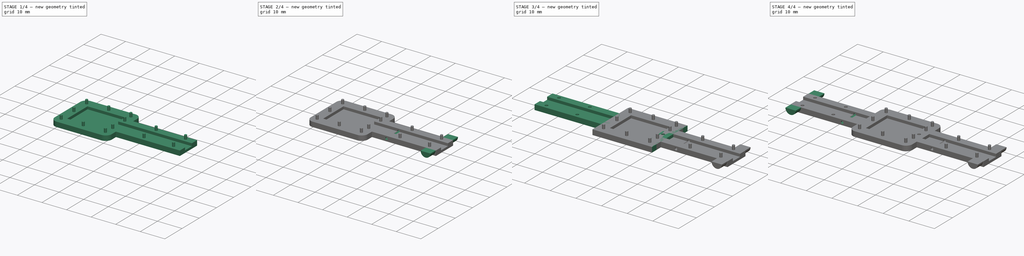
[diagram: build sequence overview — one tinted view per stage of 4, left to right]
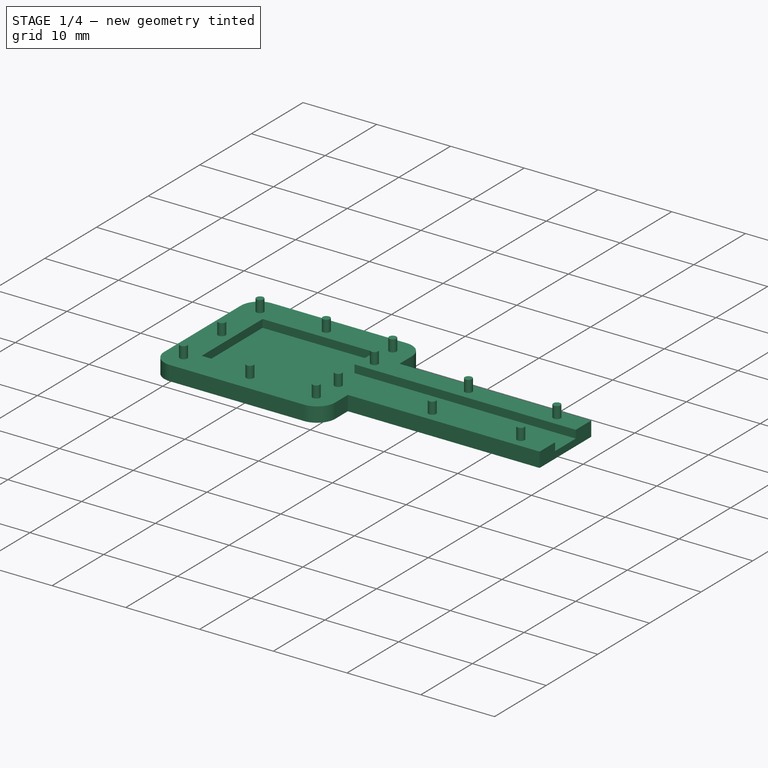
[diagram: stage 1 of 4 — iso view after this stage's code; geometry added in this stage tinted green]
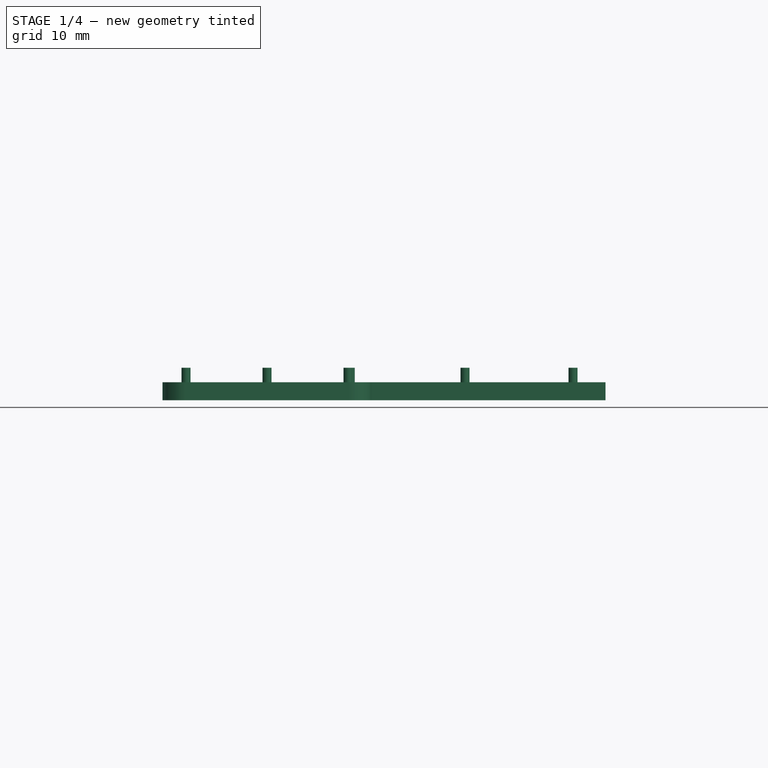
[diagram: stage 1 of 4 — front view after this stage's code; geometry added in this stage tinted green]
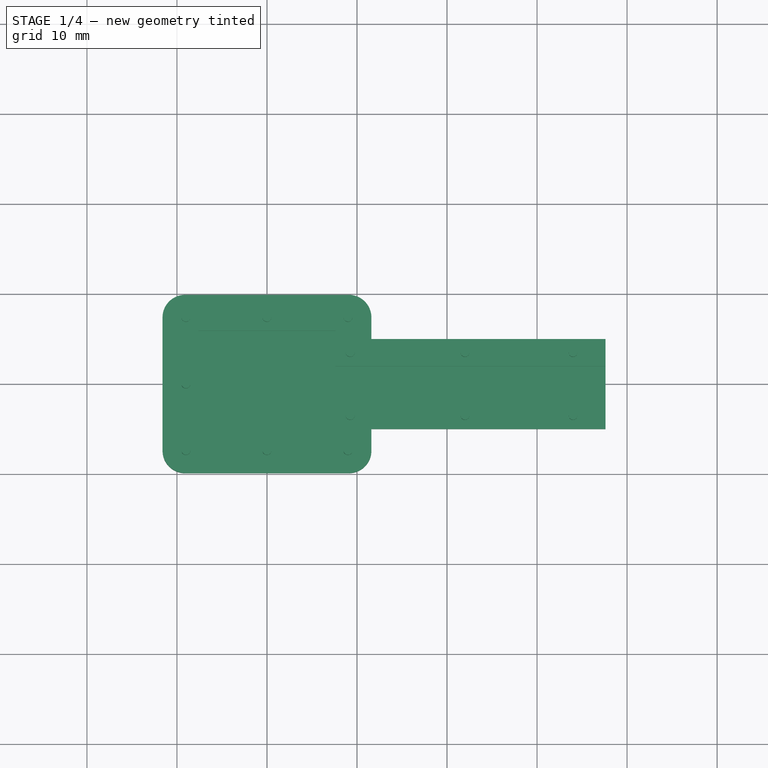
[diagram: stage 1 of 4 — top view after this stage's code; geometry added in this stage tinted green]
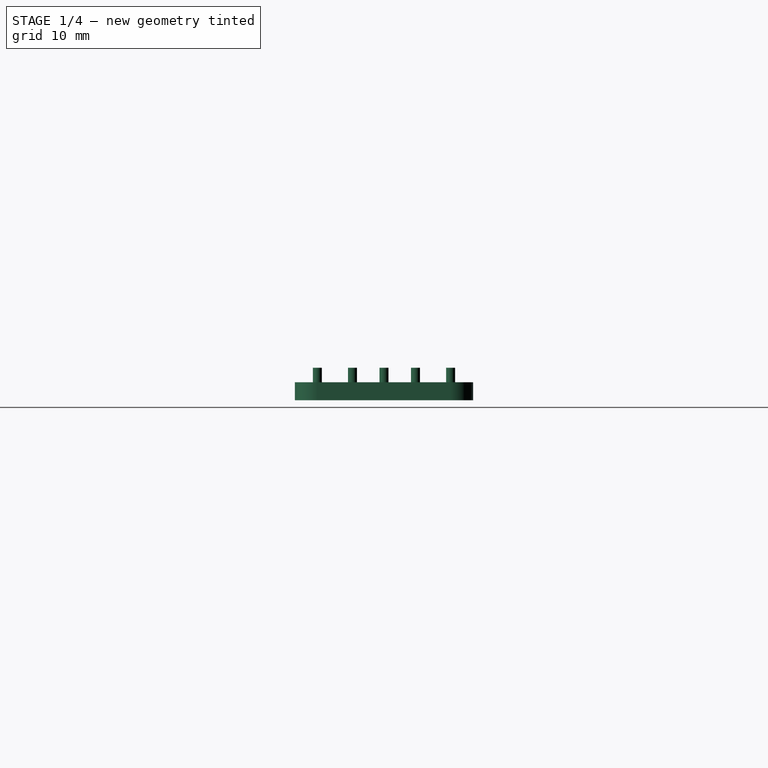
[diagram: stage 1 of 4 — right view after this stage's code; geometry added in this stage tinted green]
FCSTD DOCUMENT  (FreeCAD 0.21R33771 (Git))
Label: Key2
License: All rights reserved
LicenseURL: http://en.wikipedia.org/wiki/All_rights_reserved
objects: Sketcher::SketchObject×12, PartDesign::Pad×7, PartDesign::Pocket×5, PartDesign::Fillet×2, PartDesign::Body×2, App::Part×2, Spreadsheet::Sheet×1
note: 42 computed .brp shape members not serialized (recipe doc carries the construction recipe); baked Part::Feature solids carry a one-line shape summary decoded from their .brp

FEATURE [Sketcher::SketchObject] MirroredSketch
  FullyConstrained = true
  expr: Constraints[19] = <<p>>.touch_width + <<p>>.touch_thickness * 2
  expr: Constraints[20] = (<<p>>.touch_width + <<p>>.touch_thickness * 2) / 2
  expr: Constraints[22] = <<p>>.touch_length + <<p>>.touch_thickness * 2
  expr: Constraints[23] = (<<p>>.touch_length + <<p>>.touch_thickness * 2) / 2
  sketch-geometry (8):
    g0: LineSegment StartX=11.6 StartY=-5 StartZ=0 EndX=11.6 EndY=-9.9 EndZ=0
    g1: LineSegment StartX=11.6 StartY=-9.9 StartZ=0 EndX=-11.6 EndY=-9.9 EndZ=0
    g2: LineSegment StartX=-11.6 StartY=-9.9 StartZ=0 EndX=-11.6 EndY=9.9 EndZ=0
    g3: LineSegment StartX=-11.6 StartY=9.9 StartZ=0 EndX=11.6 EndY=9.9 EndZ=0
    g4: LineSegment StartX=11.6 StartY=9.9 StartZ=0 EndX=11.6 EndY=5 EndZ=0
    g5: LineSegment StartX=11.6 StartY=5 StartZ=0 EndX=37.6 EndY=5 EndZ=0
    g6: LineSegment StartX=37.6 StartY=5 StartZ=0 EndX=37.6 EndY=-5 EndZ=0
    g7: LineSegment StartX=37.6 StartY=-5 StartZ=0 EndX=11.6 EndY=-5 EndZ=0
  constraints (24):
    c: Vertical(g0)
    c: Coincident(g0,g1)
    c: Horizontal(g1)
    c: Coincident(g1,g2)
    c: Vertical(g2)
    c: Coincident(g2,g3)
    c: Horizontal(g3)
    c: Coincident(g3,g4)
    c: Vertical(g4)
    c: Coincident(g4,g5)
    c: Horizontal(g5)
    c: Coincident(g5,g6)
    c: Vertical(g6)
    c: Coincident(g6,g7)
    c: Coincident(g7,g0)
    c: Horizontal(g7)
    c: DistanceX(g5,g5) = 26
    c: DistanceX(g7,g7) = 26
    c: DistanceY(g6,g6) = 10
    c: DistanceX(g3,g3) = 23.2
    c: DistanceX(g-1,g4) = 11.6
    c: DistanceY(g-1,g4) = 5
    c: DistanceY(g2,g2) = 19.8
    c: DistanceY(g0,g-1) = 9.9
FEATURE [PartDesign::Pad] Pad001  label="KeyPad2"
  Direction = (0,0,1)
  Length = 2
  Length2 = 10
  Profile = -> MirroredSketch
  ReferenceAxis = -> MirroredSketch [N_Axis]
  Type = 0
  expr: Length = <<p>>.key_thickness / 2
FEATURE [Sketcher::SketchObject] MirroredSketch001
  FullyConstrained = true
  MapMode = 5
  Placement = pos=(0,0,2) rot=(0,0,1;0rad)
  Support = -> [Pad001]
  sketch-geometry (8):
    g0: LineSegment StartX=7.6 StartY=2 StartZ=0 EndX=7.6 EndY=5.9 EndZ=0
    g1: LineSegment StartX=7.6 StartY=5.9 StartZ=0 EndX=-7.6 EndY=5.9 EndZ=0
    g2: LineSegment StartX=-7.6 StartY=5.9 StartZ=0 EndX=-7.6 EndY=-5.9 EndZ=0
    g3: LineSegment StartX=-7.6 StartY=-5.9 StartZ=0 EndX=7.6 EndY=-5.9 EndZ=0
    g4: LineSegment StartX=7.6 StartY=-5.9 StartZ=0 EndX=7.6 EndY=-2 EndZ=0
    g5: LineSegment StartX=7.6 StartY=-2 StartZ=0 EndX=37.6 EndY=-2 EndZ=0
    g6: LineSegment StartX=37.6 StartY=-2 StartZ=0 EndX=37.6 EndY=2 EndZ=0
    g7: LineSegment StartX=37.6 StartY=2 StartZ=0 EndX=7.6 EndY=2 EndZ=0
  constraints (24):
    c: Vertical(g0)
    c: Coincident(g0,g1)
    c: Horizontal(g1)
    c: Coincident(g1,g2)
    c: Vertical(g2)
    c: Coincident(g2,g3)
    c: Horizontal(g3)
    c: Coincident(g3,g4)
    c: Vertical(g4)
    c: Coincident(g4,g5)
    c: Horizontal(g5)
    c: Coincident(g5,g6)
    c: Vertical(g6)
    c: Coincident(g6,g7)
    c: Coincident(g7,g0)
    c: Horizontal(g7)
    c: DistanceY(g2,g2) = 11.8
    c: DistanceY(g0,g0) = 3.9
    c: DistanceY(g4,g4) = 3.9
    c: DistanceY(g-1,g0) = 2
    c: DistanceX(g1,g1) = 15.2
    c: DistanceX(g7,g7) = 30
    c: DistanceX(g-1,g4) = 7.6
    c: DistanceX(g3,g3) = 15.2
FEATURE [PartDesign::Pocket] Pocket002  label="TochPocket2"
  BaseFeature = -> Pad001
  Direction = (0,0,-1)
  Length = 1.075
  Length2 = 5
  Profile = -> MirroredSketch001
  ReferenceAxis = -> MirroredSketch001 [N_Axis]
  Type = 0
  expr: Length = <<p>>.touch_depth / 2
FEATURE [Sketcher::SketchObject] MirroredSketch002
  FullyConstrained = true
  MapMode = 5
  Placement = pos=(0,0,2) rot=(0,0,1;0rad)
  Support = -> [Pocket002]
  expr: Constraints[12] = <<p>>.pin_diameter
  sketch-geometry (13):
    g0: Circle CenterX=34 CenterY=3.5 CenterZ=0 NormalX=0 NormalY=0 NormalZ=1 AngleXU=0 Radius=0.5
    g1: Circle CenterX=34 CenterY=-3.5 CenterZ=0 NormalX=0 NormalY=0 NormalZ=1 AngleXU=0 Radius=0.5
    g2: Circle CenterX=22 CenterY=3.5 CenterZ=0 NormalX=0 NormalY=0 NormalZ=1 AngleXU=0 Radius=0.5
    g3: Circle CenterX=22 CenterY=-3.5 CenterZ=0 NormalX=0 NormalY=0 NormalZ=1 AngleXU=0 Radius=0.5
    g4: Circle CenterX=9.25 CenterY=-3.5 CenterZ=0 NormalX=0 NormalY=0 NormalZ=1 AngleXU=0 Radius=0.5
    g5: Circle CenterX=9.25 CenterY=3.5 CenterZ=0 NormalX=0 NormalY=0 NormalZ=1 AngleXU=0 Radius=0.5
    g6: Circle CenterX=9 CenterY=7.4 CenterZ=0 NormalX=0 NormalY=0 NormalZ=1 AngleXU=0 Radius=0.5
    g7: Circle CenterX=0 CenterY=7.4 CenterZ=0 NormalX=0 NormalY=0 NormalZ=1 AngleXU=0 Radius=0.5
    g8: Circle CenterX=-9 CenterY=7.4 CenterZ=0 NormalX=0 NormalY=0 NormalZ=1 AngleXU=0 Radius=0.5
    g9: Circle CenterX=-9 CenterY=0 CenterZ=0 NormalX=0 NormalY=0 NormalZ=1 AngleXU=0 Radius=0.5
    g10: Circle CenterX=-9 CenterY=-7.4 CenterZ=0 NormalX=0 NormalY=0 NormalZ=1 AngleXU=0 Radius=0.5
    g11: Circle CenterX=0 CenterY=-7.4 CenterZ=0 NormalX=0 NormalY=0 NormalZ=1 AngleXU=0 Radius=0.5
    g12: Circle CenterX=9 CenterY=-7.4 CenterZ=0 NormalX=0 NormalY=0 NormalZ=1 AngleXU=0 Radius=0.5
  constraints (28):
    c: Equal(g0, g1-g12) x12
    c: Diameter(g0) = 1
    c: DistanceX(g7,g-1) = 0
    c: DistanceX(g11,g-1) = 0
    c: DistanceY(g-1,g8) = 7.4
    c: DistanceY(g-1,g7) = 7.4
    c: DistanceY(g-1,g6) = 7.4
    c: DistanceY(g9,g-1) = 0
    c: DistanceY(g10,g-1) = 7.4
    c: DistanceY(g11,g-1) = 7.4
    c: DistanceY(g12,g-1) = 7.4
    c: DistanceY(g4,g-1) = 3.5
    c: DistanceY(g-1,g5) = 3.5
    c: DistanceY(g-1,g2) = 3.5
    c: DistanceY(g3,g-1) = 3.5
    c: DistanceY(g1,g-1) = 3.5
    c: DistanceY(g-1,g0) = 3.5
    c: DistanceX(g8,g-1) = 9
    c: DistanceX(g9,g-1) = 9
    c: DistanceX(g10,g-1) = 9
    c: DistanceX(g-1,g12) = 9
    c: DistanceX(g-1,g4) = 9.25
    c: DistanceX(g-1,g5) = 9.25
    c: DistanceX(g-1,g6) = 9
    c: DistanceX(g-1,g2) = 22
    c: DistanceX(g-1,g3) = 22
    c: DistanceX(g-1,g0) = 34
    c: DistanceX(g-1,g1) = 34
FEATURE [PartDesign::Pad] Pad002  label="PinPads2"
  BaseFeature = -> Pocket002
  Direction = (0,0,1)
  Length = 1.6
  Length2 = 10
  Profile = -> MirroredSketch002
  ReferenceAxis = -> MirroredSketch002 [N_Axis]
  Type = 0
  expr: Length = <<p>>.pin_depth - 0.2
FEATURE [PartDesign::Fillet] Fillet001
  Base = -> Pad002 [Edge47,Edge46,Edge2,Edge8]
  BaseFeature = -> Pad002
  Radius = 2.5
  SupportTransform = false
  UseAllEdges = false
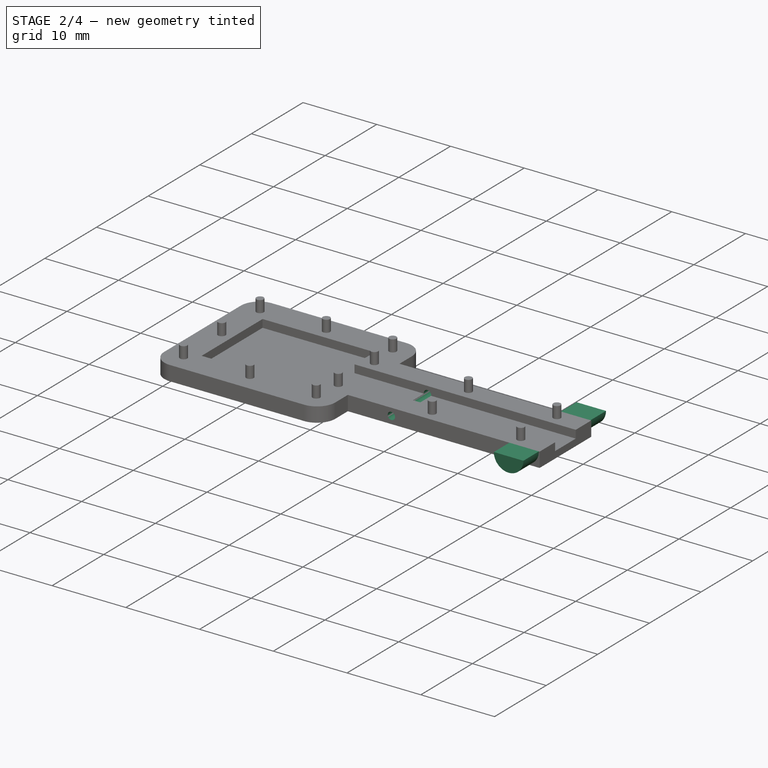
[diagram: stage 2 of 4 — iso view after this stage's code; geometry added in this stage tinted green]
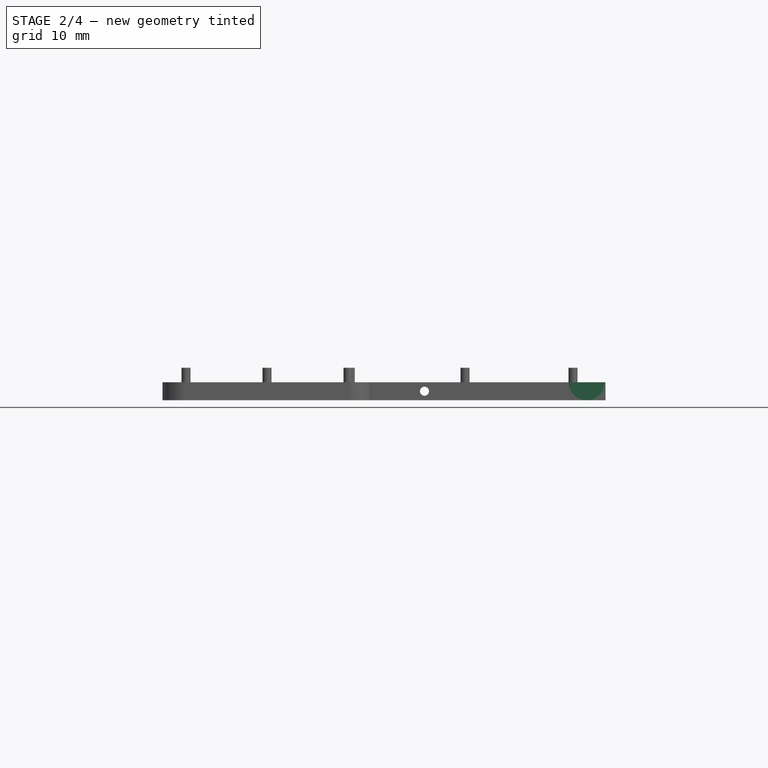
[diagram: stage 2 of 4 — front view after this stage's code; geometry added in this stage tinted green]
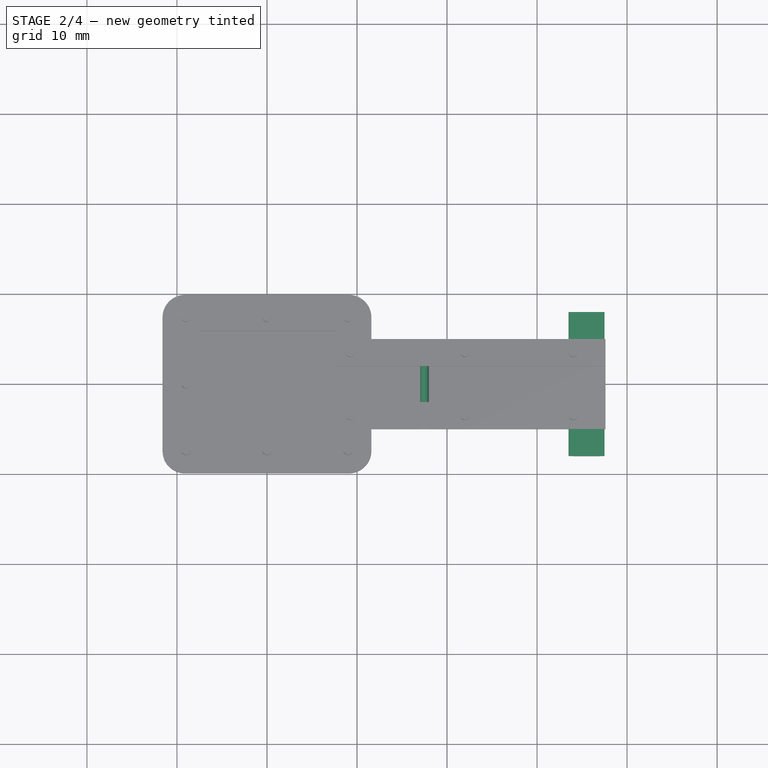
[diagram: stage 2 of 4 — top view after this stage's code; geometry added in this stage tinted green]
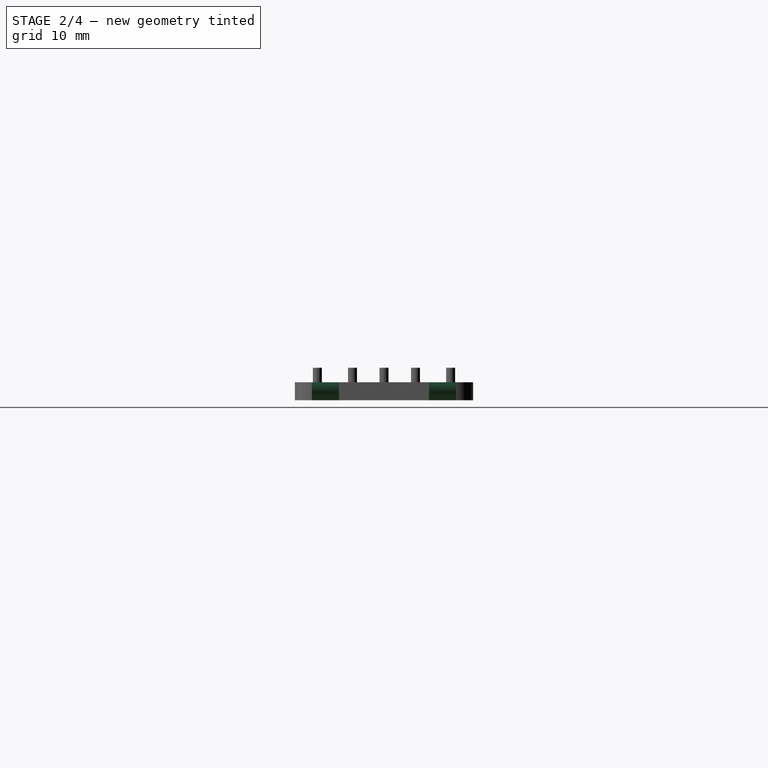
[diagram: stage 2 of 4 — right view after this stage's code; geometry added in this stage tinted green]
FEATURE [Sketcher::SketchObject] Sketch003
  FullyConstrained = true
  MapMode = 5
  Placement = pos=(0,5,0) rot=(0,0.707107,0.707107;3.14159rad)
  Support = -> [Fillet001]
  expr: Constraints[0] = <<p>>.key_thickness
  expr: Constraints[1] = <<p>>.key_thickness / 2
  expr: Constraints[2] = <<p>>.key_thickness / 2
  sketch-geometry (2):
    g0: ArcOfCircle CenterX=-35.5 CenterY=2 CenterZ=0 NormalX=0 NormalY=0 NormalZ=1 AngleXU=0 Radius=2 StartAngle=3.1416 EndAngle=6.28319
    g1: LineSegment StartX=-37.5 StartY=1.99999 StartZ=0 EndX=-33.5 EndY=2 EndZ=0
  constraints (7):
    c: Diameter(g0) = 4
    c: DistanceY(g-1,g0) = 2
    c: DistanceY(g-1,g0) = 2
    c: DistanceX(g0,g-1) = 37.5
    c: DistanceX(g0,g0) = 2
    c: Coincident(g1,g0)
    c: Coincident(g1,g0)
FEATURE [PartDesign::Pad] Pad003  label="KeyLock3"
  BaseFeature = -> Fillet001
  Direction = (0,1,-2e-16)
  Length = 3
  Length2 = 10
  Profile = -> Sketch003
  ReferenceAxis = -> Sketch003 [N_Axis]
  Type = 0
FEATURE [Sketcher::SketchObject] Sketch004
  FullyConstrained = true
  MapMode = 5
  Placement = pos=(0,-5,0) rot=(1,0,0;1.5708rad)
  Support = -> [Pad003]
  expr: Constraints[3] = <<p>>.key_thickness / 2
  expr: Constraints[4] = <<p>>.key_thickness
  sketch-geometry (2):
    g0: ArcOfCircle CenterX=35.5 CenterY=2 CenterZ=0 NormalX=0 NormalY=0 NormalZ=1 AngleXU=0 Radius=2 StartAngle=3.14159 EndAngle=6.28319
    g1: LineSegment StartX=33.5 StartY=2 StartZ=0 EndX=37.5 EndY=2 EndZ=0
  constraints (7):
    c: Coincident(g1,g0)
    c: Coincident(g1,g0)
    c: Horizontal(g1)
    c: DistanceY(g-1,g0) = 2
    c: Diameter(g0) = 4
    c: DistanceY(g0,g0) = 0
    c: DistanceX(g-1,g0) = 37.5
FEATURE [PartDesign::Pad] Pad004  label="KeyLock4"
  BaseFeature = -> Pad003
  Direction = (0,-1,2e-16)
  Length = 3
  Length2 = 10
  Profile = -> Sketch004
  ReferenceAxis = -> Sketch004 [N_Axis]
  Type = 0
FEATURE [PartDesign::Body] Body  label="KeyBody1"
  Group = -> [Sketch,Pad,Sketch001,Pocket,Sketch002,Pocket001,Fillet,Sketch005,Pad005,Sketch006,Pad006,Sketch007,Pocket003]
  Origin = -> Origin001
  Tip = -> Pocket003
FEATURE [App::Part] Part  label="KeyPart1"
  Group = -> [Body]
  Origin = -> Origin
FEATURE [Sketcher::SketchObject] Sketch008
  FullyConstrained = true
  MapMode = 5
  Placement = pos=(0,5,0) rot=(0,0.707107,0.707107;3.14159rad)
  Support = -> [Pad004]
  sketch-geometry (1):
    g0: Circle CenterX=-17.5 CenterY=1 CenterZ=0 NormalX=0 NormalY=0 NormalZ=1 AngleXU=0 Radius=0.5
  constraints (3):
    c: Diameter(g0) = 1
    c: DistanceX(g0,g-1) = 17.5
    c: DistanceY(g-1,g0) = 1
FEATURE [PartDesign::Pocket] Pocket004  label="SpringPocket2"
  BaseFeature = -> Pad004
  Direction = (0,-1,2e-16)
  Length = 5
  Length2 = 5
  Profile = -> Sketch008
  ReferenceAxis = -> Sketch008 [N_Axis]
  Type = 1
FEATURE [PartDesign::Body] Body001  label="KeyBody2"
  Group = -> [MirroredSketch,Pad001,MirroredSketch001,Pocket002,MirroredSketch002,Pad002,Fillet001,Sketch003,Pad003,Sketch004,Pad004,Sketch008,Pocket004]
  Origin = -> Origin003
  Tip = -> Pocket004
FEATURE [App::Part] Part001  label="KeyPart2"
  Group = -> [Body001]
  Origin = -> Origin002
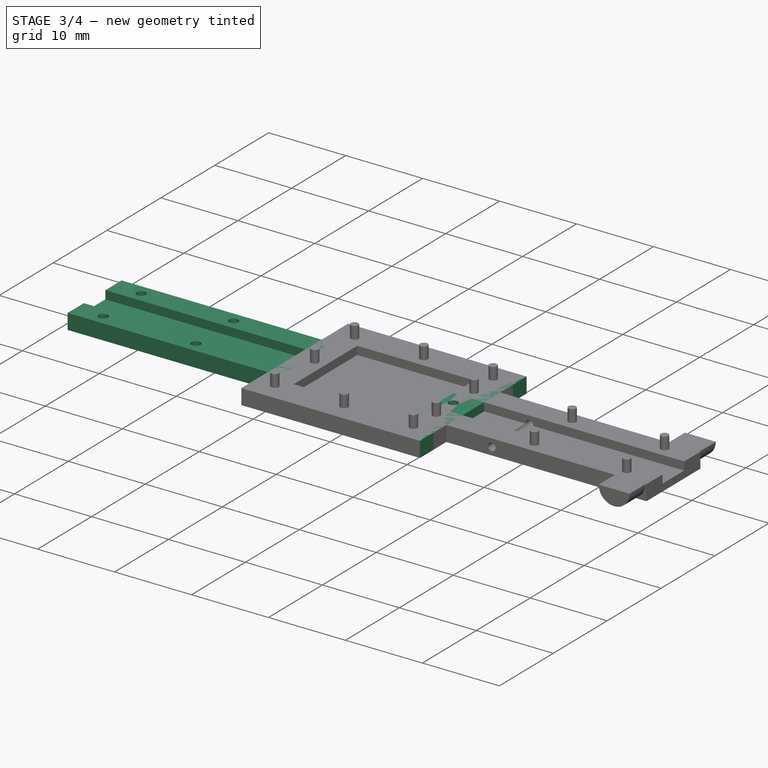
[diagram: stage 3 of 4 — iso view after this stage's code; geometry added in this stage tinted green]
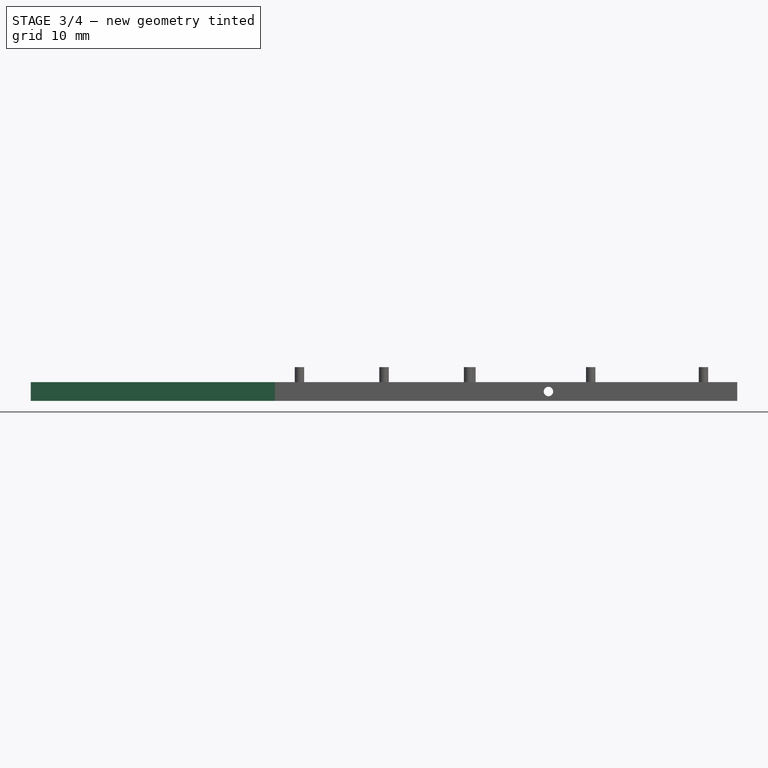
[diagram: stage 3 of 4 — front view after this stage's code; geometry added in this stage tinted green]
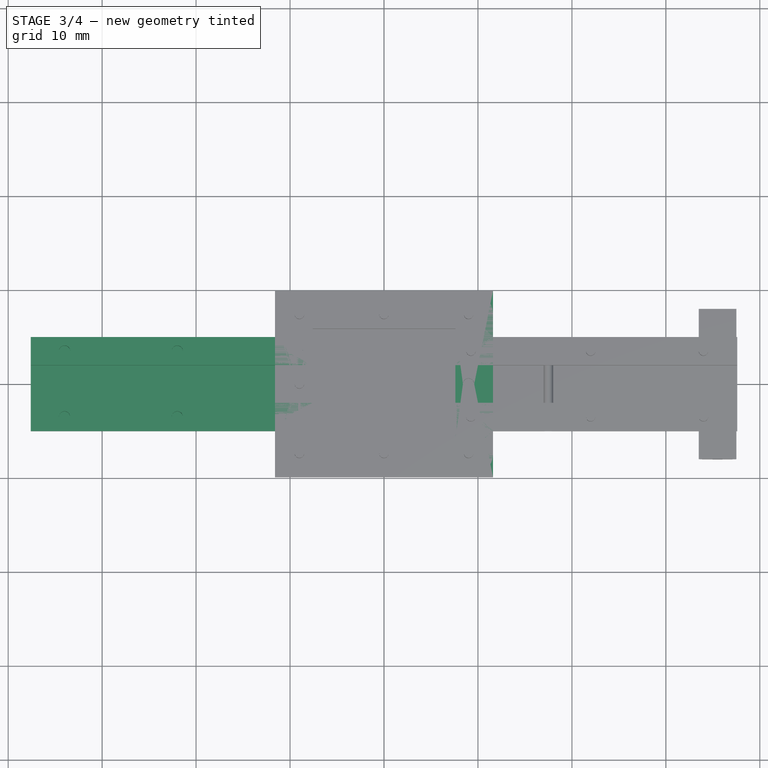
[diagram: stage 3 of 4 — top view after this stage's code; geometry added in this stage tinted green]
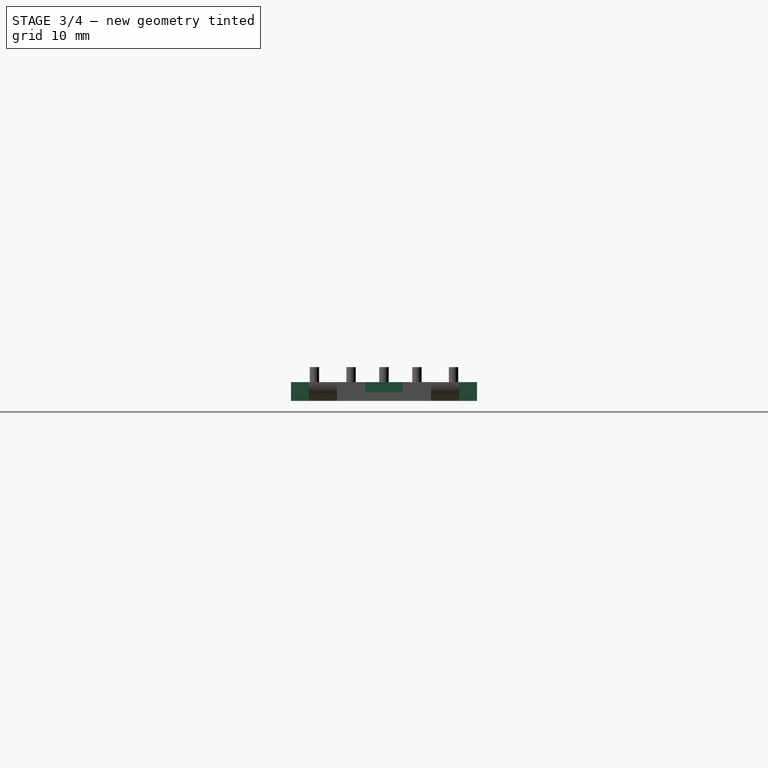
[diagram: stage 3 of 4 — right view after this stage's code; geometry added in this stage tinted green]
FEATURE [Spreadsheet::Sheet] Spreadsheet  label="p"
  cells = A1='key_thickness; B1(key_thickness)=4; A3='touch_width; B3(touch_width)=15.2; A4='touch_length; B4(touch_length)=11.8; A5='touch_depth; B5(touch_depth)=2.15; A7='pin_diameter; B7(pin_diameter)=1; A8='pin_depth; B8(pin_depth)=1.8; A9='pin_hole_diameter; B9(pin_hole_diameter)=1.2; A11='touch_thickness; B11(touch_thickness)=4; A13='key_lock_thickness; B13(key_lock_thickness)=3
FEATURE [Sketcher::SketchObject] Sketch
  FullyConstrained = true
  MapMode = 5
  Support = -> [XY_Plane001]
  expr: Constraints[16] = <<p>>.touch_width + <<p>>.touch_thickness * 2
  expr: Constraints[17] = <<p>>.touch_width + <<p>>.touch_thickness * 2
  expr: Constraints[18] = <<p>>.touch_length + <<p>>.touch_thickness * 2
  expr: Constraints[19] = (<<p>>.touch_length + <<p>>.touch_thickness * 2) / 2
  expr: Constraints[21] = (<<p>>.touch_width + <<p>>.touch_thickness * 2) / 2
  sketch-geometry (8):
    g0: LineSegment StartX=-11.6 StartY=-5 StartZ=0 EndX=-11.6 EndY=-9.9 EndZ=0
    g1: LineSegment StartX=-11.6 StartY=-9.9 StartZ=0 EndX=11.6 EndY=-9.9 EndZ=0
    g2: LineSegment StartX=11.6 StartY=-9.9 StartZ=0 EndX=11.6 EndY=9.9 EndZ=0
    g3: LineSegment StartX=11.6 StartY=9.9 StartZ=0 EndX=-11.6 EndY=9.9 EndZ=0
    g4: LineSegment StartX=-11.6 StartY=9.9 StartZ=0 EndX=-11.6 EndY=5 EndZ=0
    g5: LineSegment StartX=-11.6 StartY=5 StartZ=0 EndX=-37.6 EndY=5 EndZ=0
    g6: LineSegment StartX=-37.6 StartY=5 StartZ=0 EndX=-37.6 EndY=-5 EndZ=0
    g7: LineSegment StartX=-37.6 StartY=-5 StartZ=0 EndX=-11.6 EndY=-5 EndZ=0
  constraints (24):
    c: Vertical(g0)
    c: Coincident(g0,g1)
    c: Horizontal(g1)
    c: Coincident(g1,g2)
    c: Vertical(g2)
    c: Coincident(g2,g3)
    c: Horizontal(g3)
    c: Coincident(g3,g4)
    c: Vertical(g4)
    c: Coincident(g4,g5)
    c: Horizontal(g5)
    c: Coincident(g5,g6)
    c: Vertical(g6)
    c: Coincident(g6,g7)
    c: Coincident(g7,g0)
    c: Horizontal(g7)
    c: DistanceX(g3,g3) = 23.2
    c: DistanceX(g1,g1) = 23.2
    c: DistanceY(g2,g2) = 19.8
    c: DistanceY(g-1,g3) = 9.9
    c: DistanceY(g6,g6) = 10
    c: DistanceX(g-1,g2) = 11.6
    c: DistanceX(g5,g5) = 26
    c: DistanceY(g-1,g4) = 5
FEATURE [PartDesign::Pad] Pad  label="KeyPad1"
  Direction = (0,0,1)
  Length = 2
  Length2 = 10
  Profile = -> Sketch
  ReferenceAxis = -> Sketch [N_Axis]
  Type = 0
  expr: Length = <<p>>.key_thickness / 2
FEATURE [Sketcher::SketchObject] Sketch001
  FullyConstrained = true
  MapMode = 5
  Placement = pos=(0,0,2) rot=(0,0,1;0rad)
  Support = -> [Pad]
  expr: Constraints[17] = <<p>>.touch_width
  expr: Constraints[18] = <<p>>.touch_width
  expr: Constraints[19] = <<p>>.touch_length
  expr: Constraints[20] = <<p>>.touch_length / 2
  expr: Constraints[21] = <<p>>.touch_width / 2
  sketch-geometry (8):
    g0: LineSegment StartX=-7.6 StartY=2 StartZ=0 EndX=-7.6 EndY=5.9 EndZ=0
    g1: LineSegment StartX=-7.6 StartY=5.9 StartZ=0 EndX=7.6 EndY=5.9 EndZ=0
    g2: LineSegment StartX=7.6 StartY=5.9 StartZ=0 EndX=7.6 EndY=-5.9 EndZ=0
    g3: LineSegment StartX=7.6 StartY=-5.9 StartZ=0 EndX=-7.6 EndY=-5.9 EndZ=0
    g4: LineSegment StartX=-7.6 StartY=-5.9 StartZ=0 EndX=-7.6 EndY=-2 EndZ=0
    g5: LineSegment StartX=-7.6 StartY=-2 StartZ=0 EndX=-37.6 EndY=-2 EndZ=0
    g6: LineSegment StartX=-37.6 StartY=-2 StartZ=0 EndX=-37.6 EndY=2 EndZ=0
    g7: LineSegment StartX=-37.6 StartY=2 StartZ=0 EndX=-7.6 EndY=2 EndZ=0
  constraints (24):
    c: Vertical(g0)
    c: Coincident(g0,g1)
    c: Horizontal(g1)
    c: Coincident(g1,g2)
    c: Vertical(g2)
    c: Coincident(g2,g3)
    c: Horizontal(g3)
    c: Coincident(g3,g4)
    c: Vertical(g4)
    c: Coincident(g4,g5)
    c: Horizontal(g5)
    c: Coincident(g5,g6)
    c: Vertical(g6)
    c: Coincident(g6,g7)
    c: Coincident(g7,g0)
    c: Horizontal(g7)
    c: DistanceY(g6,g6) = 4
    c: DistanceX(g1,g1) = 15.2
    c: DistanceX(g3,g3) = 15.2
    c: DistanceY(g2,g2) = 11.8
    c: DistanceY(g-1,g0) = 5.9
    c: DistanceX(g-1,g1) = 7.6
    c: DistanceY(g-1,g0) = 2
    c: DistanceX(g7,g7) = 30
FEATURE [PartDesign::Pocket] Pocket  label="TouchPocket1"
  BaseFeature = -> Pad
  Direction = (0,0,-1)
  Length = 1.075
  Length2 = 5
  Profile = -> Sketch001
  ReferenceAxis = -> Sketch001 [N_Axis]
  Type = 0
  expr: Length = <<p>>.touch_depth / 2
FEATURE [Sketcher::SketchObject] Sketch002
  FullyConstrained = true
  MapMode = 5
  Placement = pos=(0,0,2) rot=(0,0,1;0rad)
  Support = -> [Pocket]
  expr: Constraints[21] = <<p>>.pin_hole_diameter
  sketch-geometry (13):
    g0: Circle CenterX=-34 CenterY=3.5 CenterZ=0 NormalX=0 NormalY=0 NormalZ=1 AngleXU=0 Radius=0.6
    g1: Circle CenterX=-34 CenterY=-3.5 CenterZ=0 NormalX=0 NormalY=0 NormalZ=1 AngleXU=0 Radius=0.6
    g2: Circle CenterX=-22 CenterY=3.5 CenterZ=0 NormalX=0 NormalY=0 NormalZ=1 AngleXU=0 Radius=0.6
    g3: Circle CenterX=-22 CenterY=-3.5 CenterZ=0 NormalX=0 NormalY=0 NormalZ=1 AngleXU=0 Radius=0.6
    g4: Circle CenterX=-9.25 CenterY=-3.5 CenterZ=0 NormalX=0 NormalY=0 NormalZ=1 AngleXU=0 Radius=0.6
    g5: Circle CenterX=-9.25 CenterY=3.5 CenterZ=0 NormalX=0 NormalY=0 NormalZ=1 AngleXU=0 Radius=0.6
    g6: Circle CenterX=-9 CenterY=7.4 CenterZ=0 NormalX=0 NormalY=0 NormalZ=1 AngleXU=0 Radius=0.6
    g7: Circle CenterX=0 CenterY=7.4 CenterZ=0 NormalX=0 NormalY=0 NormalZ=1 AngleXU=0 Radius=0.6
    g8: Circle CenterX=9 CenterY=7.4 CenterZ=0 NormalX=0 NormalY=0 NormalZ=1 AngleXU=0 Radius=0.6
    g9: Circle CenterX=9 CenterY=0 CenterZ=0 NormalX=0 NormalY=0 NormalZ=1 AngleXU=0 Radius=0.6
    g10: Circle CenterX=9 CenterY=-7.4 CenterZ=0 NormalX=0 NormalY=0 NormalZ=1 AngleXU=0 Radius=0.6
    g11: Circle CenterX=0 CenterY=-7.4 CenterZ=0 NormalX=0 NormalY=0 NormalZ=1 AngleXU=0 Radius=0.6
    g12: Circle CenterX=-9 CenterY=-7.4 CenterZ=0 NormalX=0 NormalY=0 NormalZ=1 AngleXU=0 Radius=0.6
  constraints (28):
    c: PointOnObject(g7,g-2)
    c: PointOnObject(g9,g-1)
    c: PointOnObject(g11,g-2)
    c: DistanceY(g-1,g0) = 3.5
    c: DistanceY(g-1,g2) = 3.5
    c: DistanceY(g-1,g5) = 3.5
    c: DistanceY(g4,g-1) = 3.5
    c: DistanceY(g3,g-1) = 3.5
    c: DistanceY(g1,g-1) = 3.5
    c: Equal(g0, g1-g12) x12
    c: Diameter(g0) = 1.2
    c: DistanceY(g-1,g6) = 7.4
    c: DistanceY(g-1,g7) = 7.4
    c: DistanceY(g-1,g8) = 7.4
    c: DistanceY(g10,g-1) = 7.4
    c: DistanceY(g11,g-1) = 7.4
    c: DistanceY(g12,g-1) = 7.4
    c: DistanceX(g6,g-1) = 9
    c: DistanceX(g12,g-1) = 9
    c: DistanceX(g0,g-1) = 34
    c: DistanceX(g1,g-1) = 34
    c: DistanceX(g5,g-1) = 9.25
    c: DistanceX(g4,g-1) = 9.25
    c: DistanceX(g2,g-1) = 22
    c: DistanceX(g3,g-1) = 22
    c: DistanceX(g-1,g8) = 9
    c: DistanceX(g-1,g9) = 9
    c: DistanceX(g-1,g10) = 9
FEATURE [PartDesign::Pocket] Pocket001  label="PinPockets1"
  BaseFeature = -> Pocket
  Direction = (0,0,-1)
  Length = 1.8
  Length2 = 5
  Profile = -> Sketch002
  ReferenceAxis = -> Sketch002 [N_Axis]
  Type = 0
  expr: Length = <<p>>.pin_depth
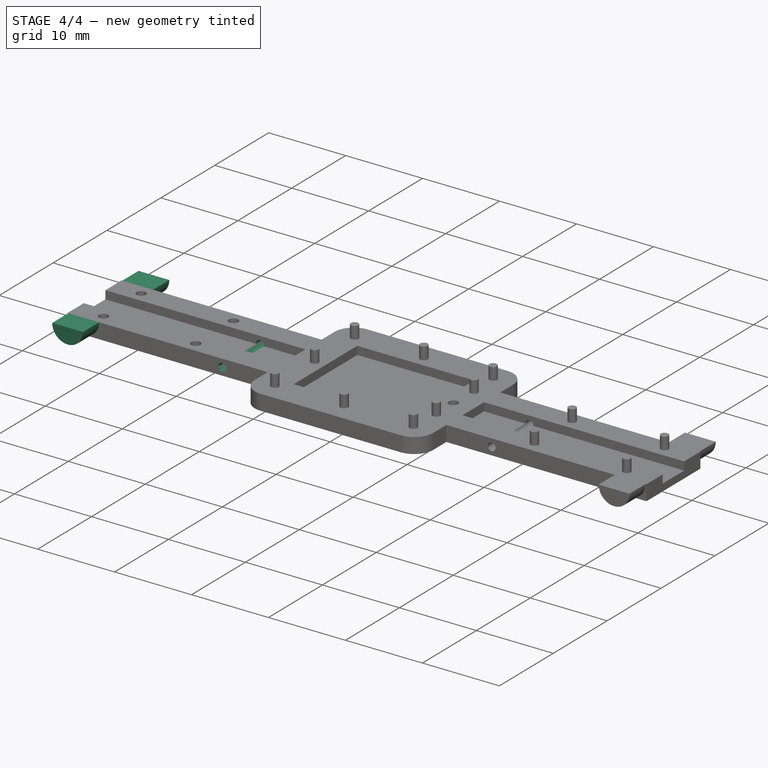
[diagram: stage 4 of 4 — iso view after this stage's code; geometry added in this stage tinted green]
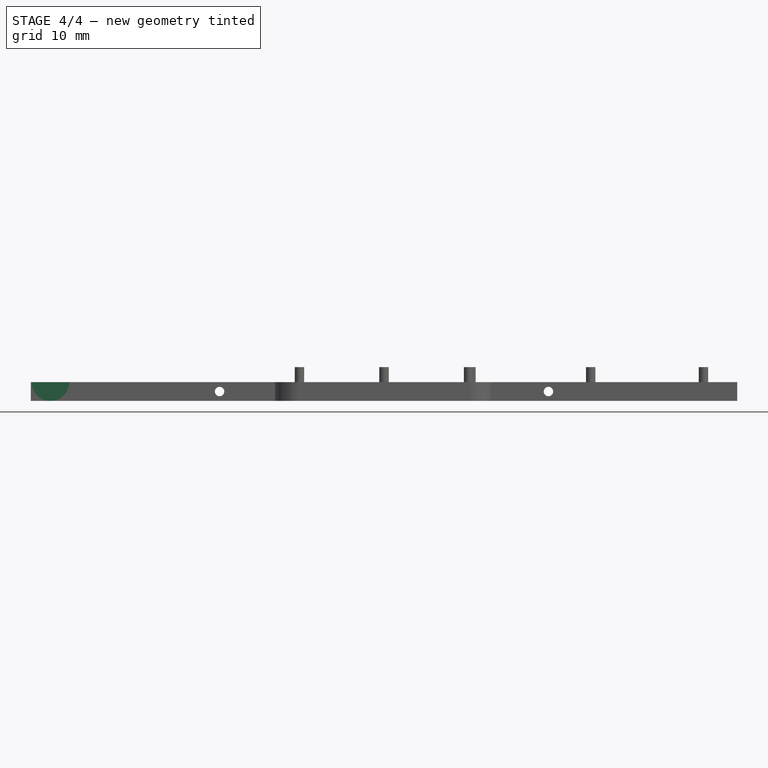
[diagram: stage 4 of 4 — front view after this stage's code; geometry added in this stage tinted green]
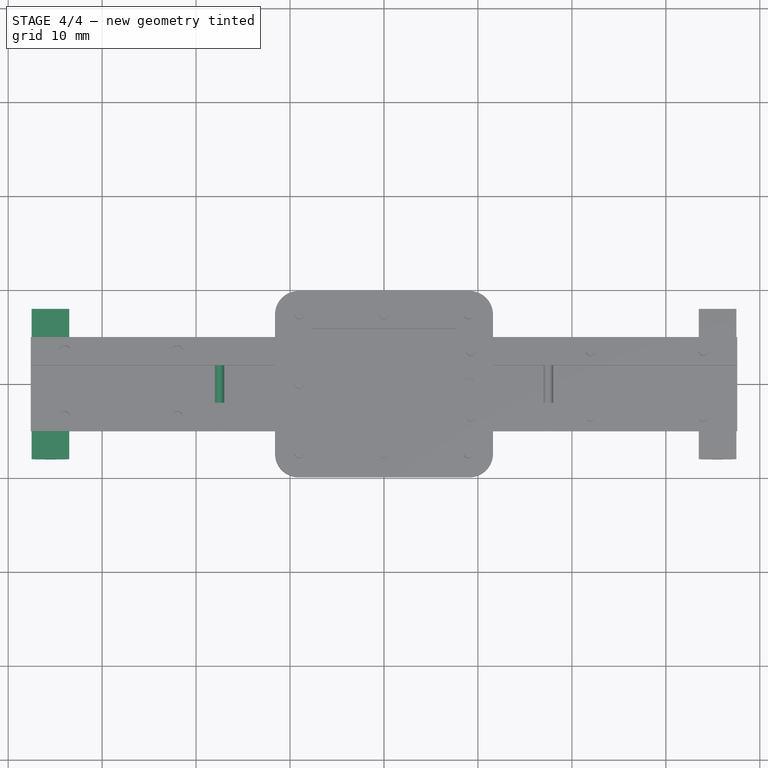
[diagram: stage 4 of 4 — top view after this stage's code; geometry added in this stage tinted green]
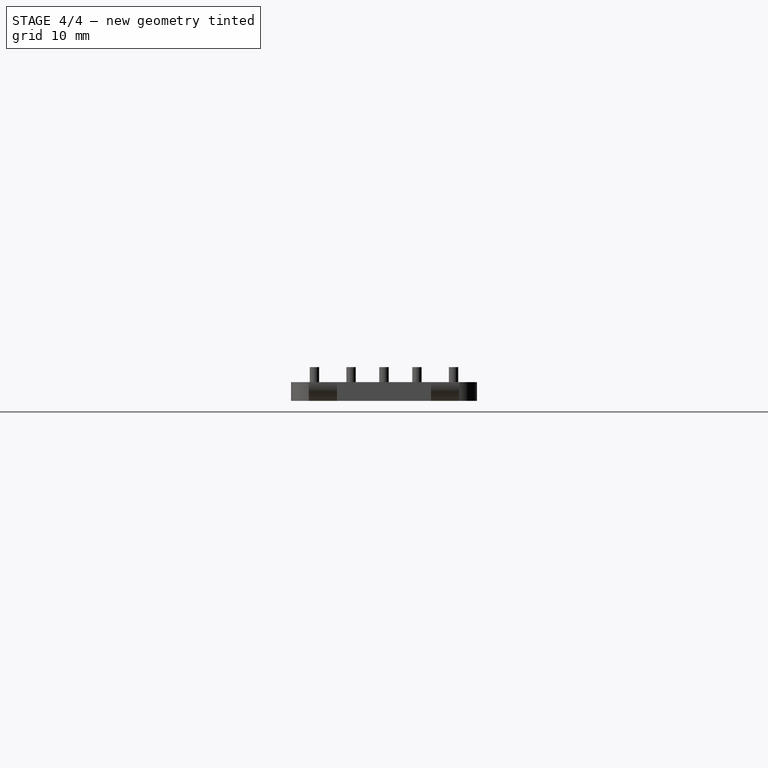
[diagram: stage 4 of 4 — right view after this stage's code; geometry added in this stage tinted green]
FEATURE [PartDesign::Fillet] Fillet  label="CornerFillet1"
  Base = -> Pocket001 [Edge2,Edge8,Edge46,Edge47]
  BaseFeature = -> Pocket001
  Radius = 2.5
  SupportTransform = false
  UseAllEdges = false
FEATURE [Sketcher::SketchObject] Sketch005
  FullyConstrained = true
  MapMode = 5
  Placement = pos=(0,-5,0) rot=(1,0,0;1.5708rad)
  Support = -> [Fillet]
  expr: Constraints[0] = <<p>>.key_thickness
  expr: Constraints[1] = <<p>>.key_thickness / 2
  expr: Constraints[3] = <<p>>.key_thickness / 2
  expr: Constraints[4] = <<p>>.key_thickness / 2
  sketch-geometry (2):
    g0: ArcOfCircle CenterX=-35.5 CenterY=2 CenterZ=0 NormalX=0 NormalY=0 NormalZ=1 AngleXU=0 Radius=2 StartAngle=3.14159 EndAngle=6.28319
    g1: LineSegment StartX=-37.5 StartY=2 StartZ=0 EndX=-33.5 EndY=2 EndZ=0
  constraints (7):
    c: Diameter(g0) = 4
    c: DistanceX(g0,g0) = 2
    c: DistanceX(g0,g-1) = 37.5
    c: DistanceY(g-1,g0) = 2
    c: DistanceY(g-1,g0) = 2
    c: Coincident(g1,g0)
    c: Coincident(g1,g0)
FEATURE [PartDesign::Pad] Pad005  label="KeyLock1"
  BaseFeature = -> Fillet
  Direction = (0,-1,2e-16)
  Length = 3
  Length2 = 10
  Profile = -> Sketch005
  ReferenceAxis = -> Sketch005 [N_Axis]
  Type = 0
  expr: Length = <<p>>.key_lock_thickness
FEATURE [Sketcher::SketchObject] Sketch006
  FullyConstrained = true
  MapMode = 5
  Placement = pos=(0,5,0) rot=(0,0.707107,0.707107;3.14159rad)
  Support = -> [Pad005]
  expr: Constraints[0] = <<p>>.key_thickness
  expr: Constraints[1] = <<p>>.key_thickness / 2
  expr: Constraints[3] = <<p>>.key_thickness / 2
  expr: Constraints[4] = <<p>>.key_thickness / 2
  sketch-geometry (2):
    g0: ArcOfCircle CenterX=35.5 CenterY=2 CenterZ=0 NormalX=0 NormalY=0 NormalZ=1 AngleXU=0 Radius=2 StartAngle=3.14159 EndAngle=6.28319
    g1: LineSegment StartX=33.5 StartY=2 StartZ=0 EndX=37.5 EndY=2 EndZ=0
  constraints (7):
    c: Diameter(g0) = 4
    c: DistanceX(g0,g0) = 2
    c: DistanceX(g-1,g0) = 37.5
    c: DistanceY(g-1,g0) = 2
    c: DistanceY(g-1,g0) = 2
    c: Coincident(g1,g0)
    c: Coincident(g1,g0)
FEATURE [PartDesign::Pad] Pad006  label="KeyLock2"
  BaseFeature = -> Pad005
  Direction = (0,1,-2e-16)
  Length = 3
  Length2 = 10
  Profile = -> Sketch006
  ReferenceAxis = -> Sketch006 [N_Axis]
  Type = 0
  expr: Length = <<p>>.key_lock_thickness
FEATURE [Sketcher::SketchObject] Sketch007
  FullyConstrained = true
  MapMode = 5
  Placement = pos=(0,5,0) rot=(0,0.707107,0.707107;3.14159rad)
  Support = -> [Pad006]
  sketch-geometry (1):
    g0: Circle CenterX=17.5 CenterY=1 CenterZ=0 NormalX=0 NormalY=0 NormalZ=1 AngleXU=0 Radius=0.5
  constraints (3):
    c: Diameter(g0) = 1
    c: DistanceX(g-1,g0) = 17.5
    c: DistanceY(g-1,g0) = 1
FEATURE [PartDesign::Pocket] Pocket003  label="SpringPocket1"
  BaseFeature = -> Pad006
  Direction = (0,-1,2e-16)
  Length = 5
  Length2 = 5
  Profile = -> Sketch007
  ReferenceAxis = -> Sketch007 [N_Axis]
  Type = 1
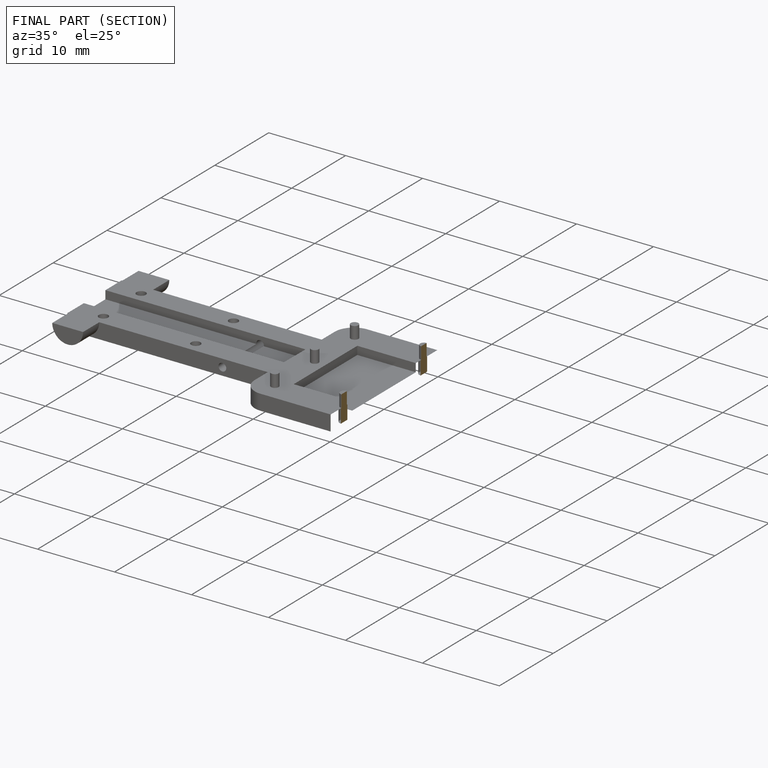
[diagram: finished part — half-section view (interior)]
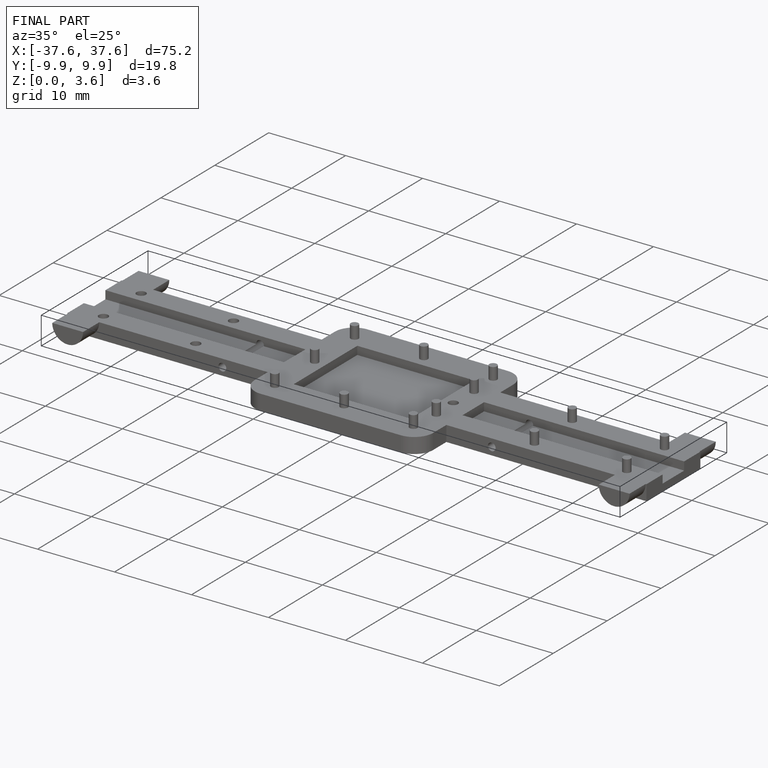
[diagram: finished part — iso view with bounding-box wireframe]
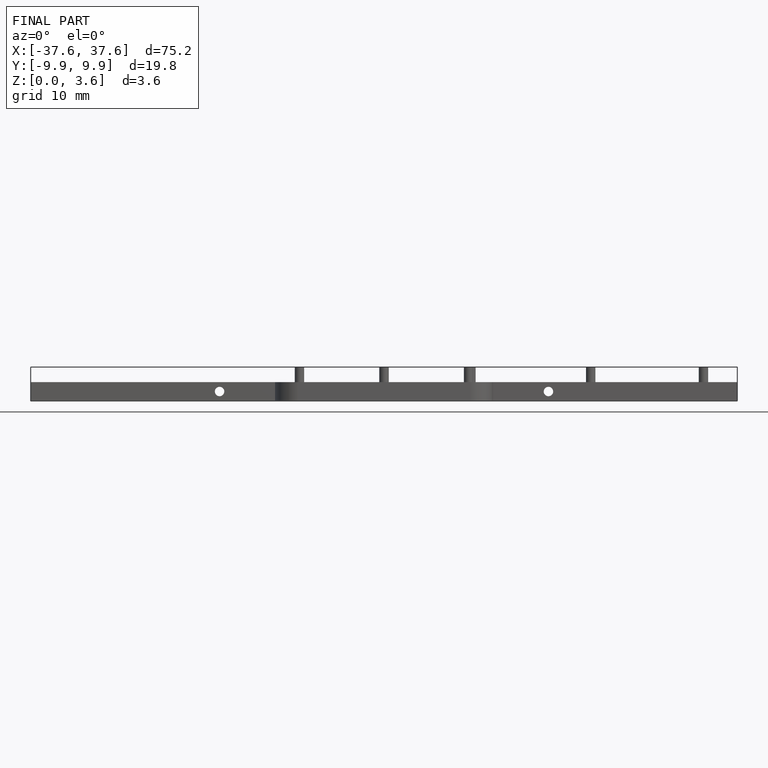
[diagram: finished part — front view with bounding-box wireframe]
